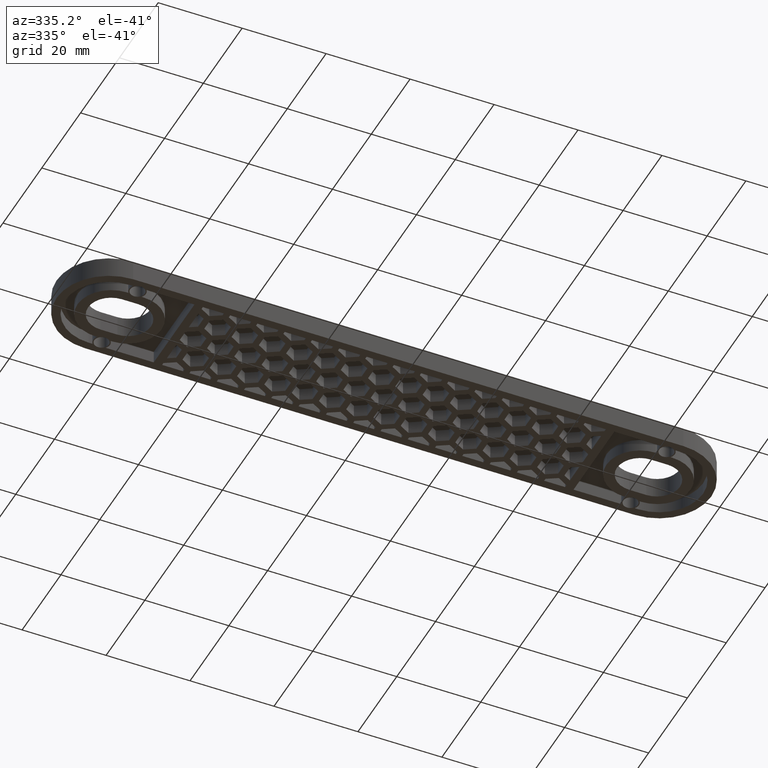
[diagram: clean part render]
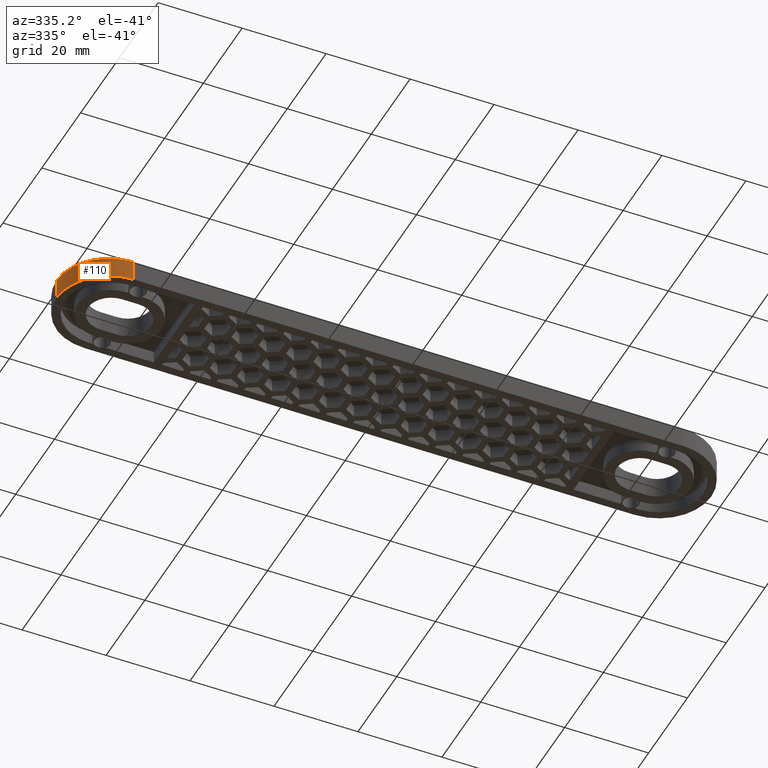
[diagram: same view with one face highlighted and labeled with its STEP entity id]
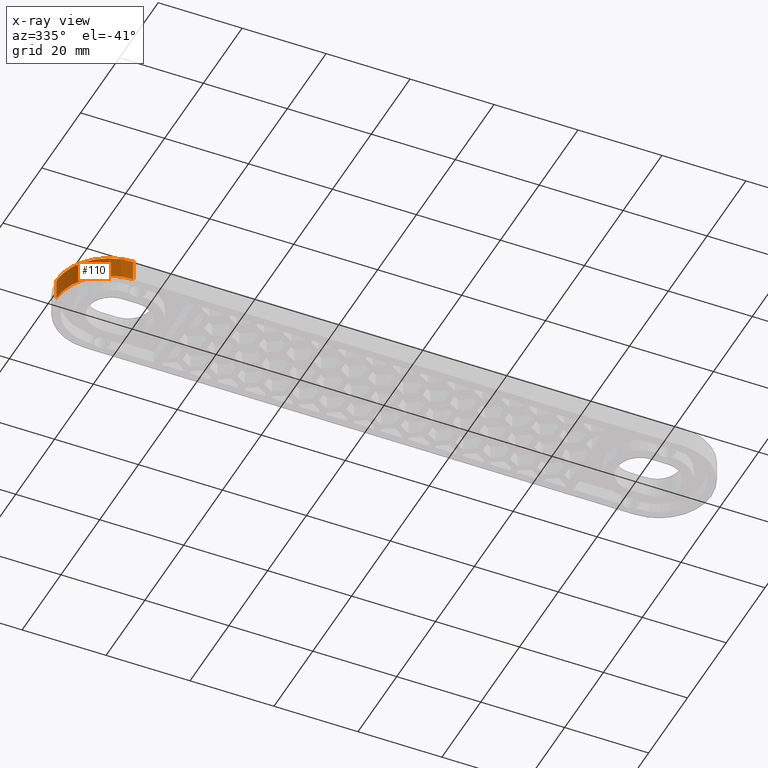
[diagram: x-ray of the same camera — body ghosted, the highlighted face saturated]
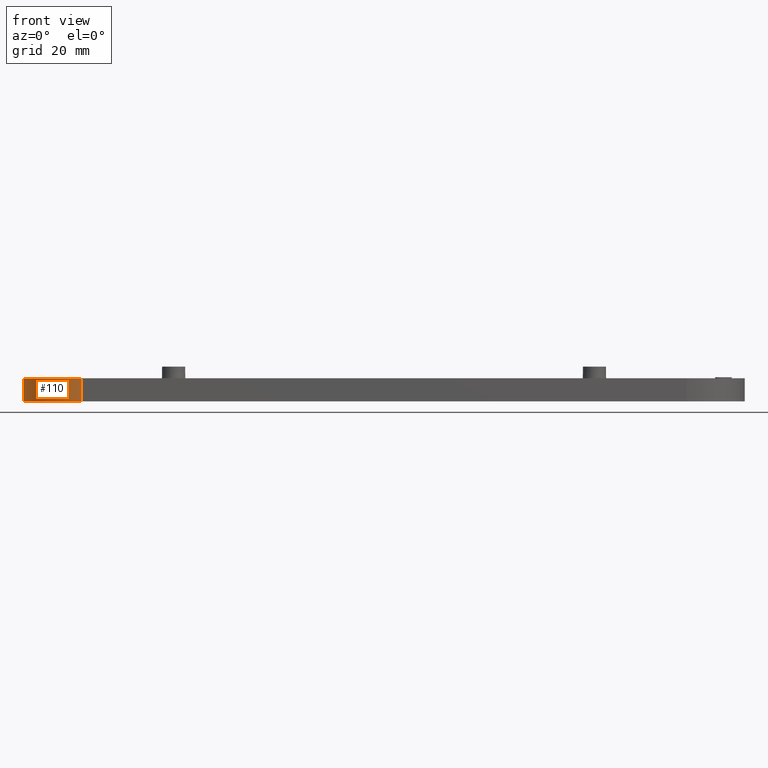
[diagram: same view with one face highlighted and labeled with its STEP entity id]
A machine part, auxiliary view. The second image highlights one B-rep face of the part: STEP entity #110.
The next image is the same camera in x-ray: the body ghosted, the highlighted face saturated — about 0% of this face is hidden behind the body in this view.
A second angle (front view) of the same face is appended — the face is thin or edge-on in the first view.
In plain terms, the highlighted cylindrical surface (partial cylindrical patch) has radius 12.5 mm, axis along (0, -0, -1).
Its self-contained STEP definition (entity closure, byte-faithful):
#110 = ADVANCED_FACE( '', ( #850 ), #851, .T. );
#850 = FACE_OUTER_BOUND( '', #2168, .T. );
#851 = CYLINDRICAL_SURFACE( '', #2169, 12.5000000000000 );
#2168 = EDGE_LOOP( '', ( #4114, #4115, #4116, #4117 ) );
#2169 = AXIS2_PLACEMENT_3D( '', #4118, #4119, #4120 );
#4114 = ORIENTED_EDGE( '', *, *, #8243, .T. );
#4115 = ORIENTED_EDGE( '', *, *, #8840, .F. );
#4116 = ORIENTED_EDGE( '', *, *, #8600, .F. );
#4117 = ORIENTED_EDGE( '', *, *, #8841, .T. );
#4118 = CARTESIAN_POINT( '', ( -65.5000000000000, -1.73472347597681E-015, -1.38777878078145E-014 ) );
#4119 = DIRECTION( '', ( 0.000000000000000, -6.12303176911189E-017, -1.00000000000000 ) );
#4120 = DIRECTION( '', ( 0.000000000000000, 1.00000000000000, -6.12303176911189E-017 ) );
#8243 = EDGE_CURVE( '', #9807, #9805, #9808, .T. );
#8600 = EDGE_CURVE( '', #10513, #10515, #10516, .T. );
#8840 = EDGE_CURVE( '', #10515, #9805, #10965, .T. );
#8841 = EDGE_CURVE( '', #10513, #9807, #10966, .T. );
#9805 = VERTEX_POINT( '', #12385 );
#9807 = VERTEX_POINT( '', #12387 );
#9808 = CIRCLE( '', #12388, 12.5000000000000 );
#10513 = VERTEX_POINT( '', #13414 );
#10515 = VERTEX_POINT( '', #13417 );
#10516 = CIRCLE( '', #13418, 12.5000000000000 );
#10965 = LINE( '', #14081, #14082 );
#10966 = LINE( '', #14083, #14084 );
#12385 = CARTESIAN_POINT( '', ( -78.0000000000000, -3.16329536349802E-015, 4.99999999999999 ) );
#12387 = CARTESIAN_POINT( '', ( -65.5000000000000, -12.5000000000000, 4.99999999999999 ) );
#12388 = AXIS2_PLACEMENT_3D( '', #16385, #16386, #16387 );
#13414 = CARTESIAN_POINT( '', ( -65.5000000000000, -12.5000000000000, -1.31124088366755E-014 ) );
#13417 = CARTESIAN_POINT( '', ( -78.0000000000000, -3.46944695195362E-015, -1.38777878078145E-014 ) );
#13418 = AXIS2_PLACEMENT_3D( '', #16812, #16813, #16814 );
#14081 = CARTESIAN_POINT( '', ( -78.0000000000000, -3.46944695195362E-015, -1.38777878078145E-014 ) );
#14082 = VECTOR( '', #17104, 1000.00000000000 );
#14083 = CARTESIAN_POINT( '', ( -65.5000000000000, -12.5000000000000, -1.31124088366755E-014 ) );
#14084 = VECTOR( '', #17105, 1000.00000000000 );
#16385 = CARTESIAN_POINT( '', ( -65.5000000000000, -1.42857188752121E-015, 4.99999999999999 ) );
#16386 = DIRECTION( '', ( 0.000000000000000, -6.12303176911189E-017, -1.00000000000000 ) );
#16387 = DIRECTION( '', ( 0.000000000000000, 1.00000000000000, -6.12303176911189E-017 ) );
#16812 = CARTESIAN_POINT( '', ( -65.5000000000000, -1.73472347597681E-015, -1.38777878078145E-014 ) );
#16813 = DIRECTION( '', ( 0.000000000000000, -6.12303176911189E-017, -1.00000000000000 ) );
#16814 = DIRECTION( '', ( 0.000000000000000, 1.00000000000000, -6.12303176911189E-017 ) );
#17104 = DIRECTION( '', ( 0.000000000000000, 6.12303176911189E-017, 1.00000000000000 ) );
#17105 = DIRECTION( '', ( 0.000000000000000, 6.12303176911189E-017, 1.00000000000000 ) );